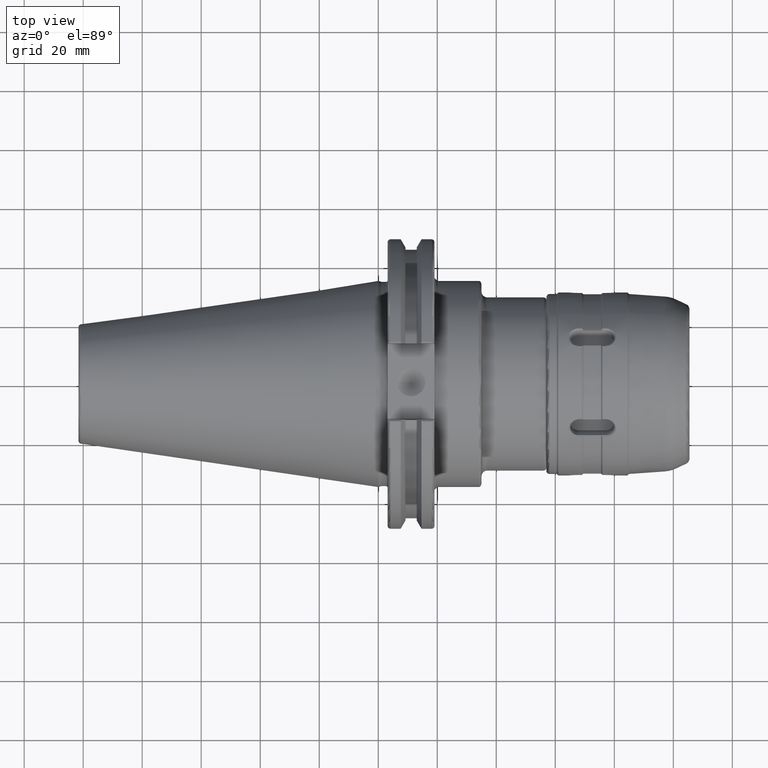
[diagram: clean part render]
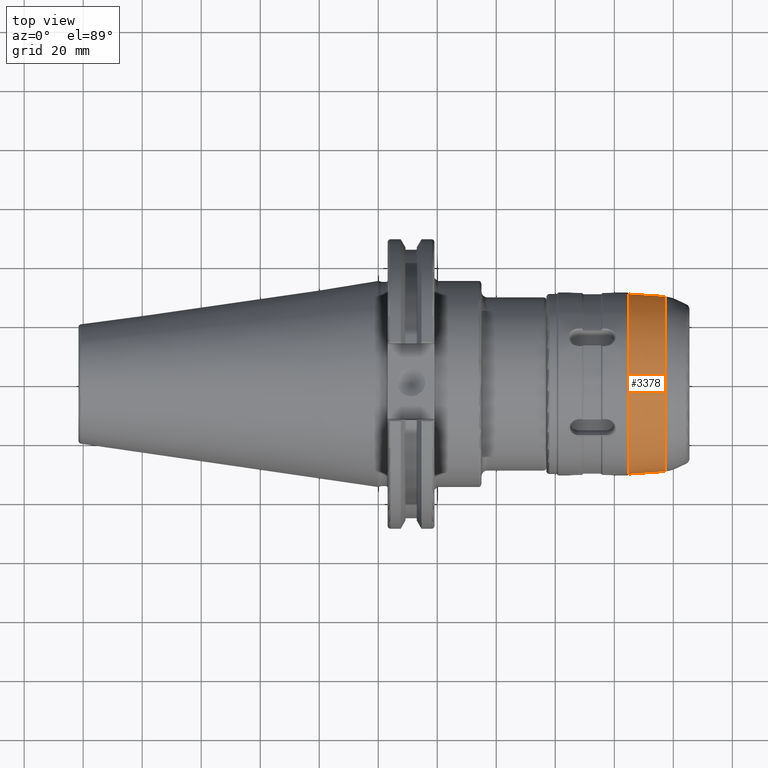
[diagram: same view with one face highlighted and labeled with its STEP entity id]
A machine part, top view. The second image highlights one B-rep face of the part: STEP entity #3378.
In plain terms, the highlighted conical surface has half-angle 4.072 deg.
Its self-contained STEP definition (entity closure, byte-faithful):
#133=CONICAL_SURFACE('',#3787,29.9991791209683,0.0710699913215307);
#463=FACE_OUTER_BOUND('',#659,.T.);
#659=EDGE_LOOP('',(#3082,#3083,#3084,#3085,#3086,#3087,#3088));
#883=LINE('',#6923,#1094);
#1094=VECTOR('',#4684,29.9991791209683);
#1259=CIRCLE('',#3779,29.6295063174127);
#1260=CIRCLE('',#3780,29.6295063174127);
#1261=CIRCLE('',#3781,29.6295063174127);
#1266=CIRCLE('',#3788,30.5);
#1267=CIRCLE('',#3789,30.5);
#1608=VERTEX_POINT('',#6905);
#1609=VERTEX_POINT('',#6907);
#1610=VERTEX_POINT('',#6909);
#1614=VERTEX_POINT('',#6922);
#1615=VERTEX_POINT('',#6924);
#2106=EDGE_CURVE('',#1608,#1609,#1259,.T.);
#2107=EDGE_CURVE('',#1609,#1610,#1260,.T.);
#2108=EDGE_CURVE('',#1610,#1608,#1261,.T.);
#2114=EDGE_CURVE('',#1609,#1614,#883,.T.);
#2115=EDGE_CURVE('',#1614,#1615,#1266,.T.);
#2116=EDGE_CURVE('',#1615,#1614,#1267,.T.);
#3082=ORIENTED_EDGE('',*,*,#2108,.F.);
#3083=ORIENTED_EDGE('',*,*,#2107,.F.);
#3084=ORIENTED_EDGE('',*,*,#2114,.T.);
#3085=ORIENTED_EDGE('',*,*,#2115,.T.);
#3086=ORIENTED_EDGE('',*,*,#2116,.T.);
#3087=ORIENTED_EDGE('',*,*,#2114,.F.);
#3088=ORIENTED_EDGE('',*,*,#2106,.F.);
#3378=ADVANCED_FACE('',(#463),#133,.T.);
#3779=AXIS2_PLACEMENT_3D('',#6908,#4665,#4666);
#3780=AXIS2_PLACEMENT_3D('',#6910,#4667,#4668);
#3781=AXIS2_PLACEMENT_3D('',#6911,#4669,#4670);
#3787=AXIS2_PLACEMENT_3D('',#6921,#4682,#4683);
#3788=AXIS2_PLACEMENT_3D('',#6925,#4685,#4686);
#3789=AXIS2_PLACEMENT_3D('',#6926,#4687,#4688);
#4665=DIRECTION('center_axis',(1.,0.,0.));
#4666=DIRECTION('ref_axis',(0.,-1.,3.06161699786838E-17));
#4667=DIRECTION('center_axis',(1.,0.,0.));
#4668=DIRECTION('ref_axis',(0.,-1.,3.06161699786838E-17));
#4669=DIRECTION('center_axis',(1.,0.,0.));
#4670=DIRECTION('ref_axis',(0.,-1.,3.06161699786838E-17));
#4682=DIRECTION('center_axis',(-1.,0.,0.));
#4683=DIRECTION('ref_axis',(0.,1.,0.));
#4684=DIRECTION('',(-0.997475590989153,-0.0710101780087896,-8.69623872053479E-18));
#4685=DIRECTION('center_axis',(1.,0.,0.));
#4686=DIRECTION('ref_axis',(0.,0.,-1.));
#4687=DIRECTION('center_axis',(1.,0.,0.));
#4688=DIRECTION('ref_axis',(0.,0.,-1.));
#6905=CARTESIAN_POINT('',(40.2277710722491,-3.62856800719357E-15,29.6295063174126));
#6907=CARTESIAN_POINT('',(40.2277710722491,-29.6295063174127,-3.62856800719357E-15));
#6908=CARTESIAN_POINT('Origin',(40.2277710722491,0.,-4.53571000899196E-15));
#6909=CARTESIAN_POINT('',(40.2277710722491,29.6295063174127,-1.81428400359678E-15));
#6910=CARTESIAN_POINT('Origin',(40.2277710722491,0.,-4.53571000899196E-15));
#6911=CARTESIAN_POINT('Origin',(40.2277710722491,0.,-4.53571000899196E-15));
#6921=CARTESIAN_POINT('Origin',(35.035,0.,0.));
#6922=CARTESIAN_POINT('',(28.,-30.5,-3.73517273739943E-15));
#6923=CARTESIAN_POINT('',(35.035,-29.9991791209683,-3.6738398687542E-15));
#6924=CARTESIAN_POINT('',(28.,30.5,0.));
#6925=CARTESIAN_POINT('Origin',(28.,0.,0.));
#6926=CARTESIAN_POINT('Origin',(28.,0.,0.));